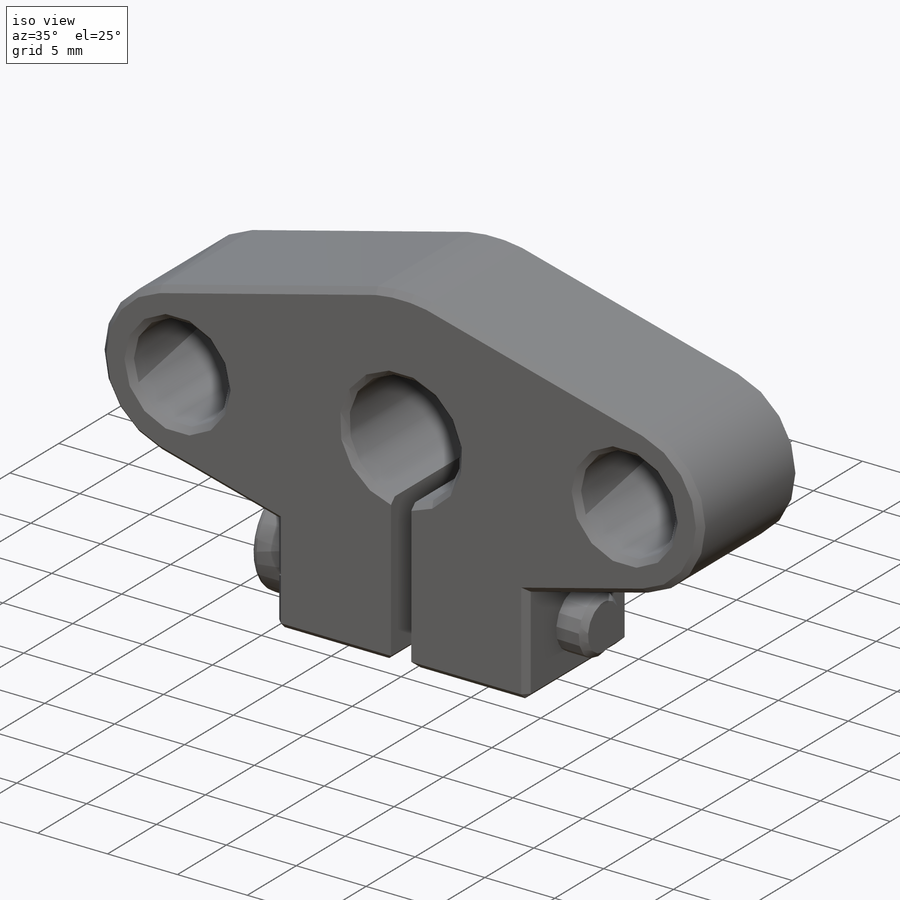
[diagram: iso view]
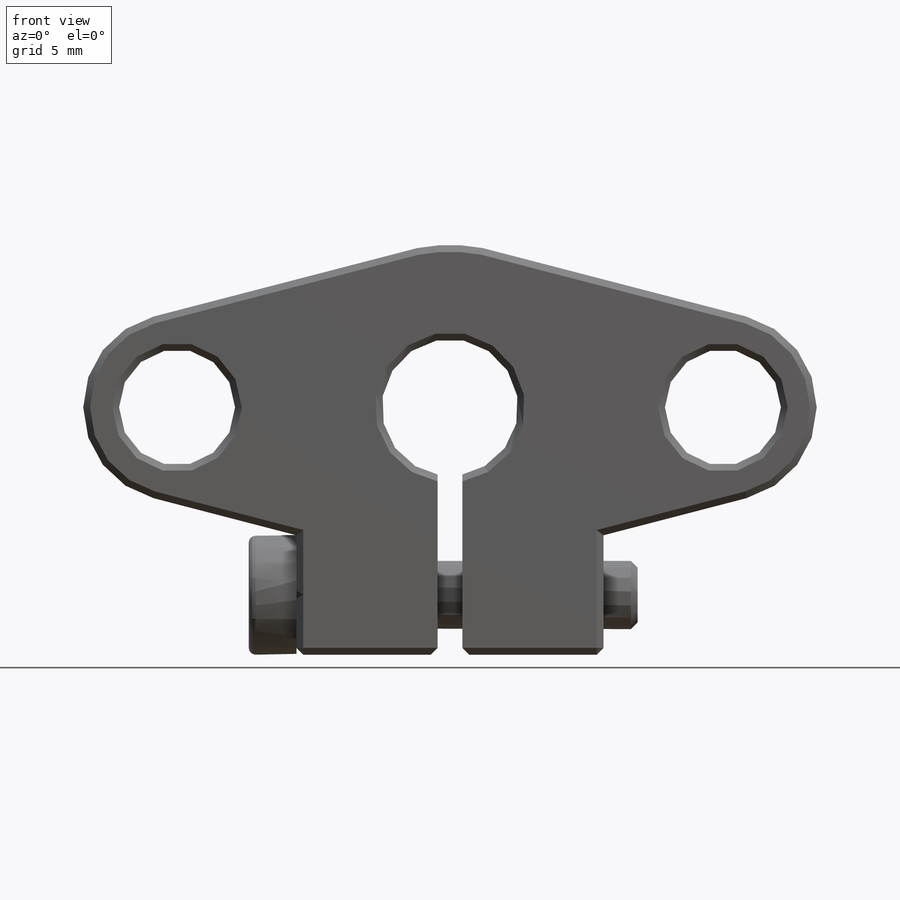
[diagram: front view]
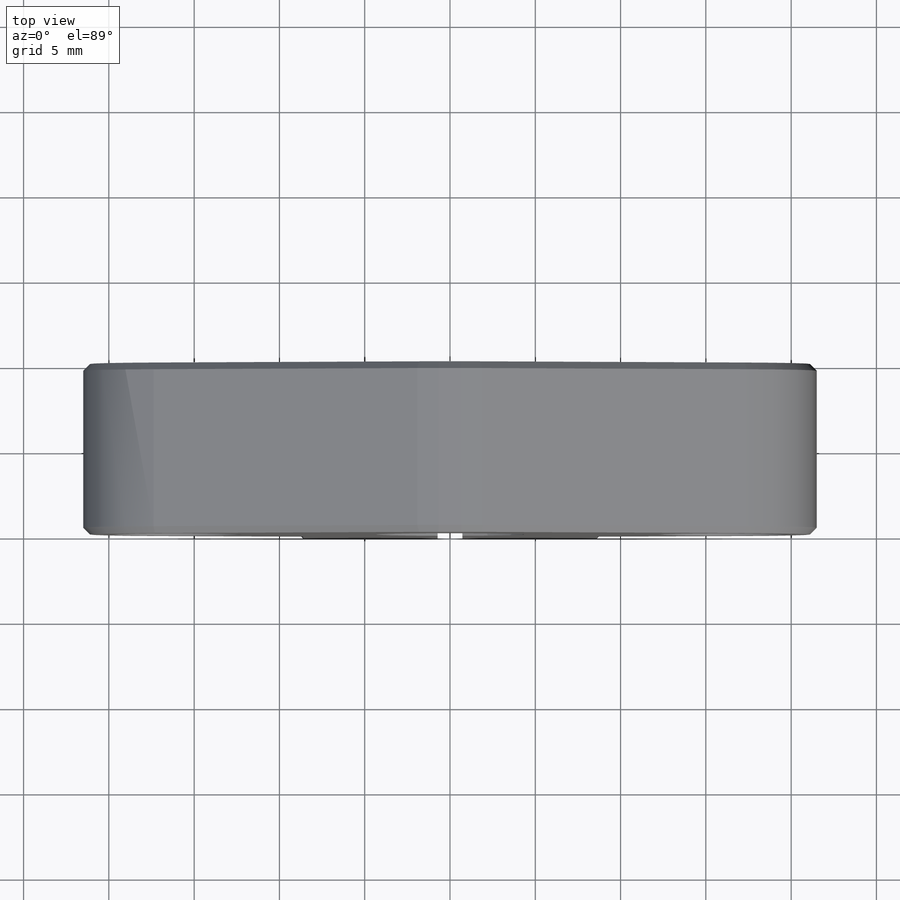
[diagram: top view]
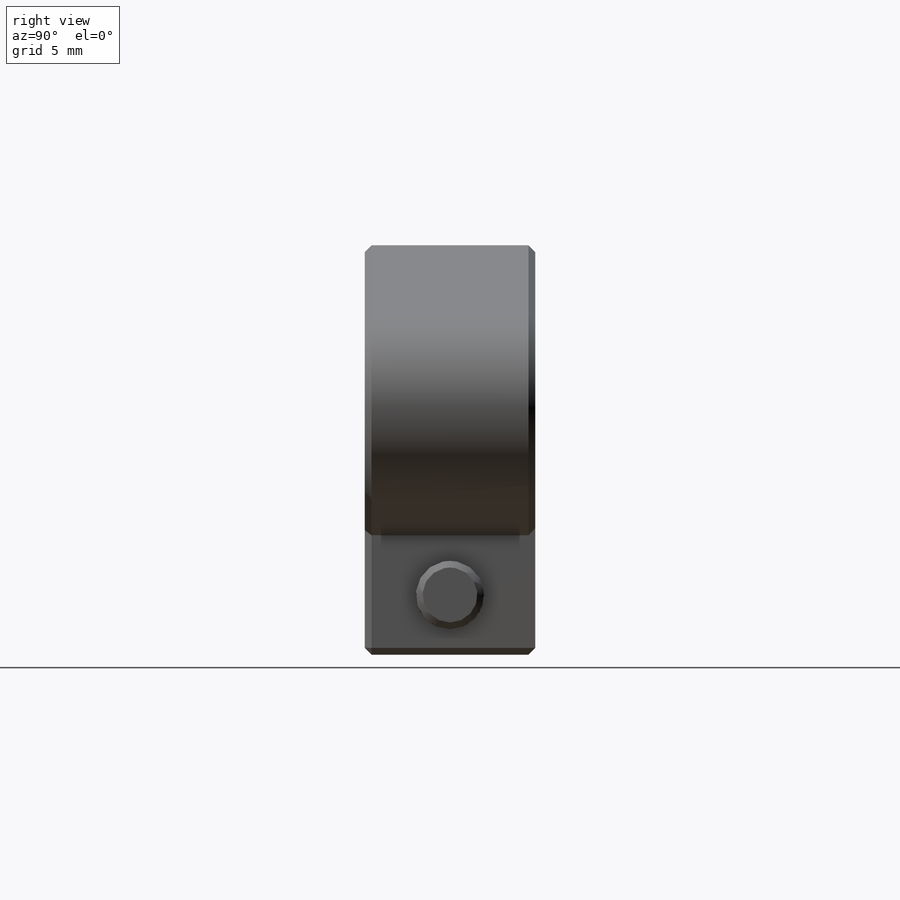
[diagram: right view]
SOLIDWORKS PART (.sldprt)
format: sldprt  version: not decoded by parser v0  size: 413,696 bytes
history: native  units: mm
features: sketch x5, plane x4, cut_extrude x3, fillet x2, chamfer x2, material x1, extrude x1, revolve x1 (+9 scaffold rows collapsed)
feature tree (28):
  scaffold x9  (default folders/planes/origin — collapsed)
  material  "Материал <не указан>"
  plane  "Спереди"
  plane  "Сверху"
  plane  "Справа"
  sketch  "Эскиз2"  dims[D1=5.5mm D2=6.8mm D3=11.0mm D4=8.0mm D5=16.0mm D6=9.0mm D7=11.0mm D8=24.0mm D9=21.5mm D10=7.0mm D11=1.45mm]
  extrude  "Бобышка-Вытянуть1"  Depth=10mm
  sketch  "Эскиз4"  dims[D1=4.0mm]
  fillet  "Скругление1"  Radius=5mm
  chamfer  "Фаска1"  Distance=0.4mm Angle=45deg
  sketch  "Эскиз6"  dims[D1=0.4mm]
  cut_extrude  "Вырез-Вытянуть3"  [1 undecoded]
  cut_extrude  "Вырез-Вытянуть1"  [1 undecoded]
  plane  "Плоскость1"
  sketch  "Эскиз7"  dims[D1=2.8mm D2=20.0mm D3=45.0deg D4=4.0mm D5=3.22mm D6=0.7mm D7=14.0mm D8=60.0mm D9=2.0mm D10=1.61mm D11=3.5mm]
  revolve  "Повернуть1"  Angle=360deg
  fillet  "Скругление2"  Radius=0.4mm
  sketch  "Эскиз8"  dims[D1=3.0mm]
  cut_extrude  "Вырез-Вытянуть4"  Depth=2.5mm
  chamfer  "Фаска2"  Distance=0.4mm Angle=45deg
decode coverage: 12 of 14 modeling features carry decoded parameters
note: 2 parameter values undecoded
note: suppression state not decoded; provenance and decode notes live in map.json
